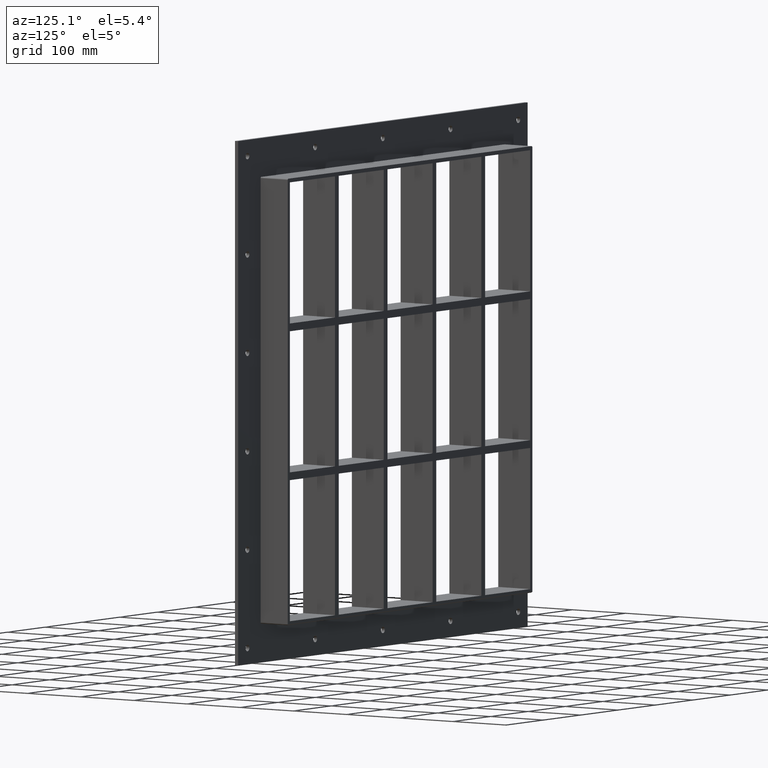
[diagram: clean part render]
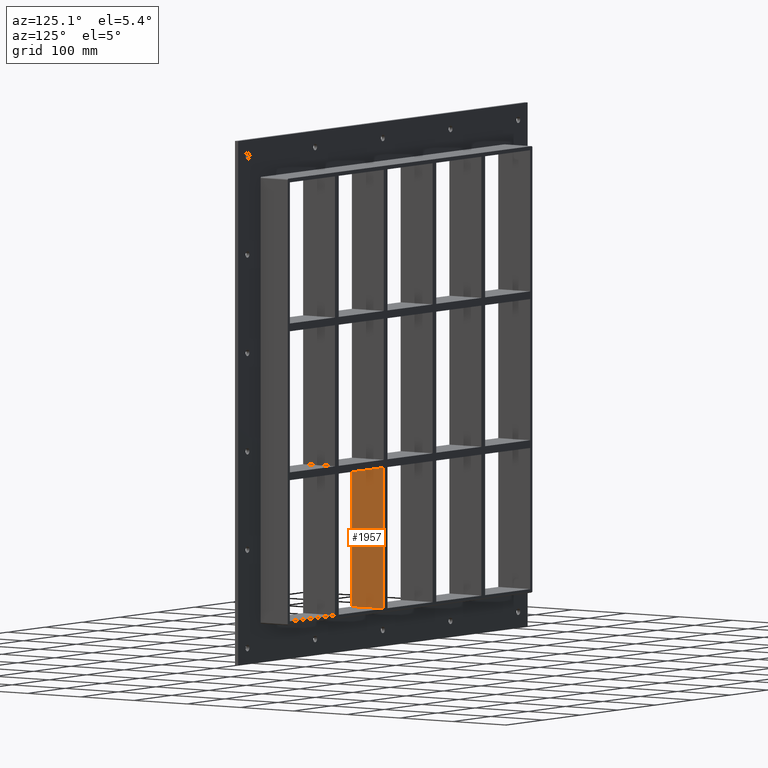
[diagram: same view with one face highlighted and labeled with its STEP entity id]
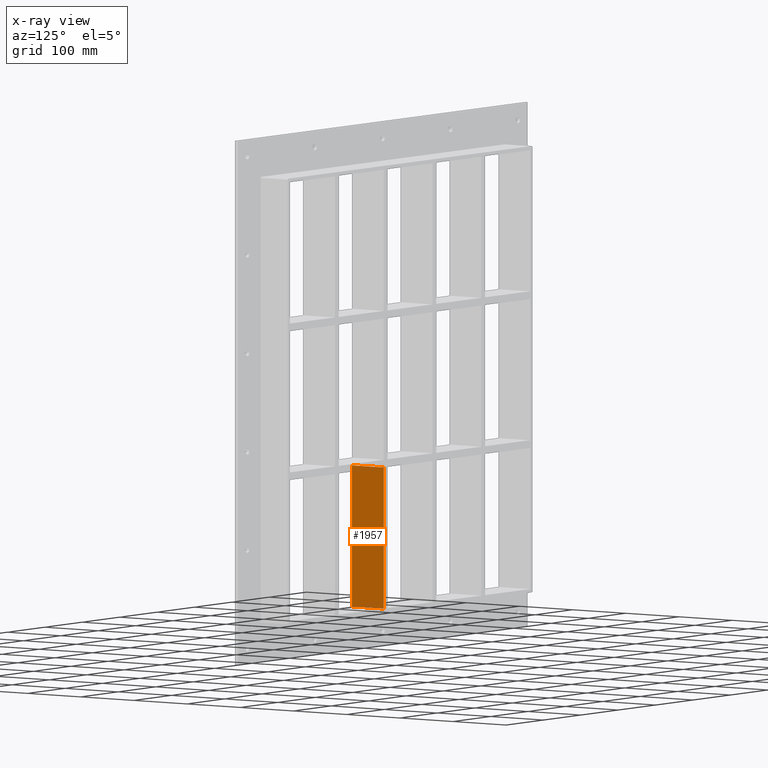
[diagram: x-ray of the same camera — body ghosted, the highlighted face saturated]
A machine part, auxiliary view. The second image highlights one B-rep face of the part: STEP entity #1957.
The next image is the same camera in x-ray: the body ghosted, the highlighted face saturated — about 0% of this face is hidden behind the body in this view.
In plain terms, the highlighted planar face has unit normal (1, 0, 0).
Its self-contained STEP definition (entity closure, byte-faithful):
#1668=CARTESIAN_POINT('',(70.249999999992738,57.0,-121.00000000001117));
#1669=VERTEX_POINT('',#1668);
#1676=CARTESIAN_POINT('',(70.249999999992738,57.0,-338.99999999998187));
#1677=VERTEX_POINT('',#1676);
#1678=CARTESIAN_POINT('',(70.249999999992738,57.0,-121.0000000000112));
#1679=DIRECTION('',(0.0,0.0,-1.0));
#1680=VECTOR('',#1679,217.99999999997067);
#1681=LINE('',#1678,#1680);
#1682=EDGE_CURVE('',#1669,#1677,#1681,.T.);
#1927=CARTESIAN_POINT('',(70.249999999992738,-3.0,339.00000000000006));
#1928=DIRECTION('',(1.0,0.0,0.0));
#1929=DIRECTION('',(0.0,0.0,-1.0));
#1930=AXIS2_PLACEMENT_3D('',#1927,#1928,#1929);
#1931=PLANE('',#1930);
#1932=CARTESIAN_POINT('',(70.249999999992738,-3.0,-121.00000000001117));
#1933=VERTEX_POINT('',#1932);
#1934=CARTESIAN_POINT('',(70.249999999992738,-3.0,-121.00000000001124));
#1935=DIRECTION('',(0.0,1.0,0.0));
#1936=VECTOR('',#1935,60.0);
#1937=LINE('',#1934,#1936);
#1938=EDGE_CURVE('',#1933,#1669,#1937,.T.);
#1939=ORIENTED_EDGE('',*,*,#1938,.F.);
#1940=CARTESIAN_POINT('',(70.249999999992738,-3.0,-338.99999999998187));
#1941=VERTEX_POINT('',#1940);
#1942=CARTESIAN_POINT('',(70.249999999992738,-3.0,-121.0000000000112));
#1943=DIRECTION('',(0.0,0.0,-1.0));
#1944=VECTOR('',#1943,217.99999999997067);
#1945=LINE('',#1942,#1944);
#1946=EDGE_CURVE('',#1933,#1941,#1945,.T.);
#1947=ORIENTED_EDGE('',*,*,#1946,.T.);
#1948=CARTESIAN_POINT('',(70.249999999992738,57.000000000000007,-339.00000000000006));
#1949=DIRECTION('',(0.0,-1.0,0.0));
#1950=VECTOR('',#1949,60.000000000000007);
#1951=LINE('',#1948,#1950);
#1952=EDGE_CURVE('',#1677,#1941,#1951,.T.);
#1953=ORIENTED_EDGE('',*,*,#1952,.F.);
#1954=ORIENTED_EDGE('',*,*,#1682,.F.);
#1955=EDGE_LOOP('',(#1939,#1947,#1953,#1954));
#1956=FACE_OUTER_BOUND('',#1955,.T.);
#1957=ADVANCED_FACE('',(#1956),#1931,.T.);